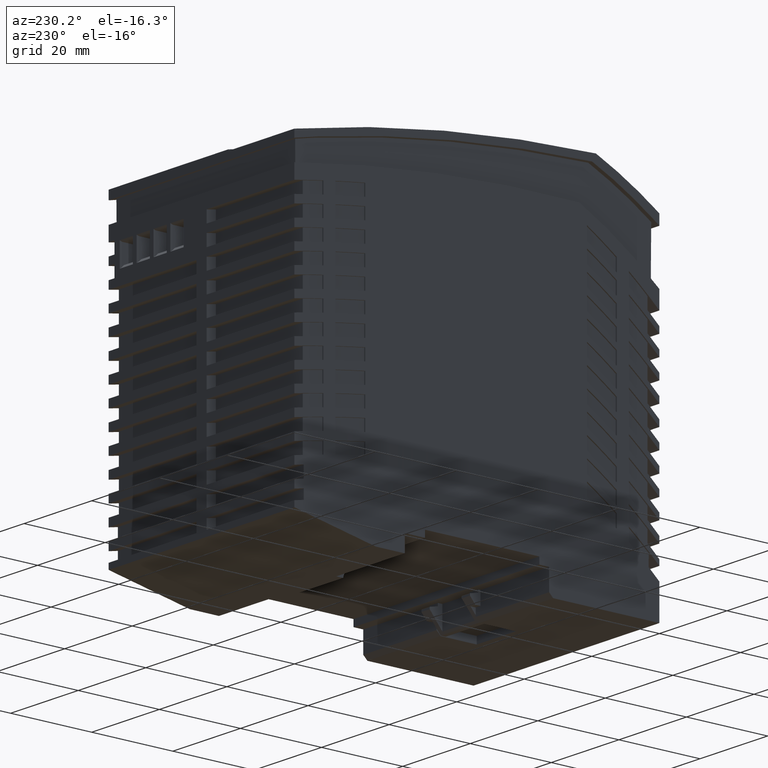
[diagram: clean part render]
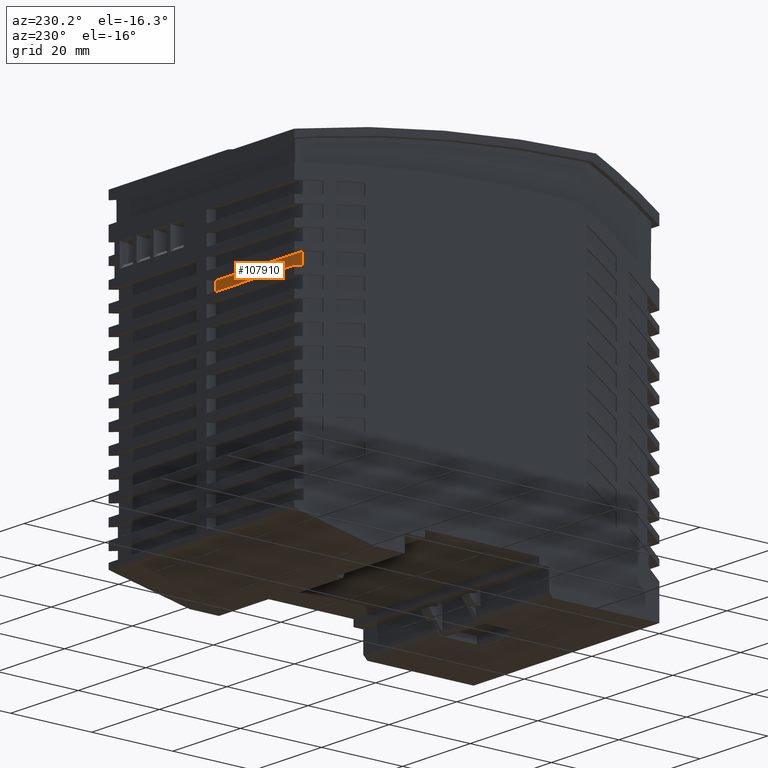
[diagram: same view with one face highlighted and labeled with its STEP entity id]
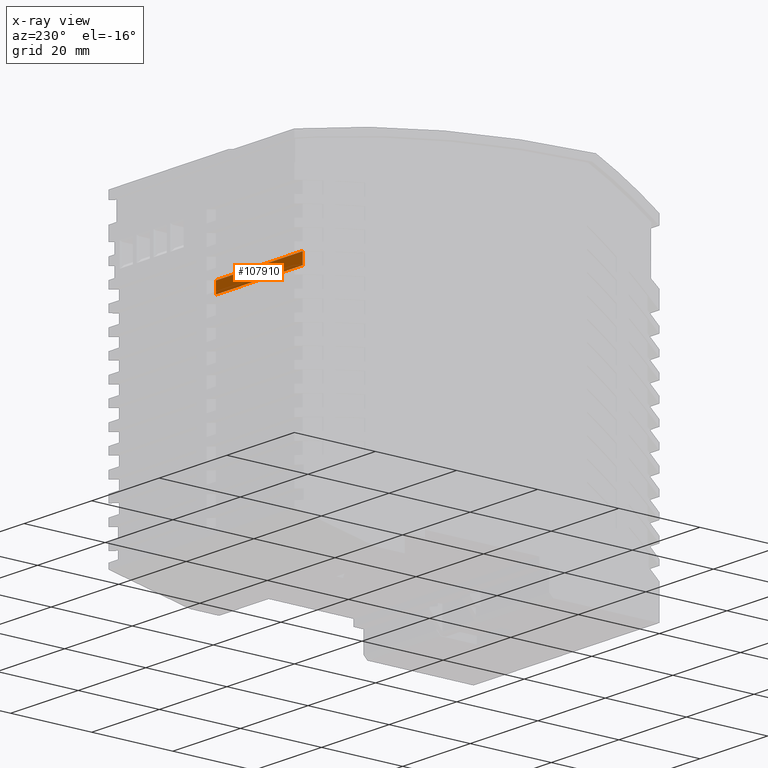
[diagram: x-ray of the same camera — body ghosted, the highlighted face saturated]
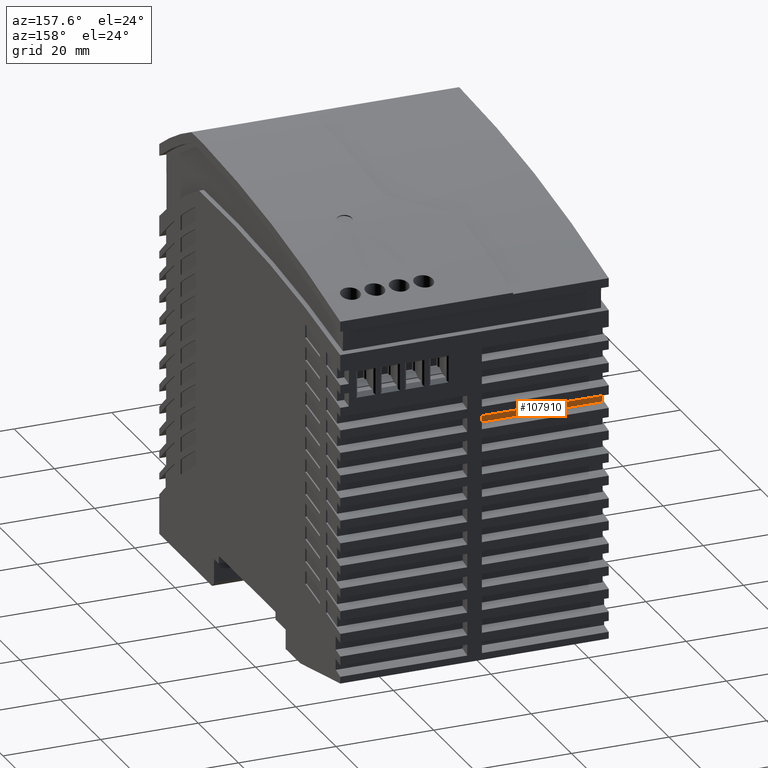
[diagram: same view with one face highlighted and labeled with its STEP entity id]
A machine part, auxiliary view. The second image highlights one B-rep face of the part: STEP entity #107910.
The next image is the same camera in x-ray: the body ghosted, the highlighted face saturated — about 0% of this face is hidden behind the body in this view.
A second angle (auxiliary view) of the same face is appended — the face is thin or edge-on in the first view.
In plain terms, the highlighted planar face has unit normal (0, -1, 0).
Its self-contained STEP definition (entity closure, byte-faithful):
#91210=CARTESIAN_POINT('',(42.6984763926282,57.0732471520077,-53.7));
#91220=VERTEX_POINT('',#91210);
#91250=CARTESIAN_POINT('',(42.6984763926292,57.0732471520075,-28.));
#91260=DIRECTION('',(0.,0.,-1.));
#91270=VECTOR('',#91260,1.);
#91280=LINE('',#91250,#91270);
#91290=CARTESIAN_POINT('',(42.6984763926282,57.0732471520077,-28.));
#91300=VERTEX_POINT('',#91290);
#91310=EDGE_CURVE('',#91300,#91220,#91280,.T.);
#92930=CARTESIAN_POINT('',(42.6984763926294,54.2772368104445,-28.));
#92940=VERTEX_POINT('',#92930);
#92970=CARTESIAN_POINT('',(42.6984763926292,54.2772368104446,-28.));
#92980=DIRECTION('',(0.,0.,-1.));
#92990=VECTOR('',#92980,1.);
#93000=LINE('',#92970,#92990);
#93010=CARTESIAN_POINT('',(42.6984763926294,54.2772368104445,-53.7));
#93020=VERTEX_POINT('',#93010);
#93030=EDGE_CURVE('',#92940,#93020,#93000,.T.);
#96140=CARTESIAN_POINT('',(42.6984763926292,0.,-53.7));
#96150=DIRECTION('',(0.,1.,0.));
#96160=VECTOR('',#96150,1.);
#96170=LINE('',#96140,#96160);
#96180=EDGE_CURVE('',#93020,#91220,#96170,.T.);
#103360=CARTESIAN_POINT('',(42.6984763926292,90.0290722762113,-28.));
#103370=DIRECTION('',(0.,-1.,0.));
#103380=VECTOR('',#103370,1.);
#103390=LINE('',#103360,#103380);
#103400=EDGE_CURVE('',#91300,#92940,#103390,.T.);
#107800=CARTESIAN_POINT('',(42.6984763926292,57.0732471520075,-28.));
#107810=DIRECTION('',(-1.,0.,0.));
#107820=DIRECTION('',(0.,-1.,0.));
#107830=AXIS2_PLACEMENT_3D('',#107800,#107810,#107820);
#107840=PLANE('',#107830);
#107850=ORIENTED_EDGE('',*,*,#93030,.T.);
#107860=ORIENTED_EDGE('',*,*,#103400,.T.);
#107870=ORIENTED_EDGE('',*,*,#91310,.F.);
#107880=ORIENTED_EDGE('',*,*,#96180,.T.);
#107890=EDGE_LOOP('',(#107880,#107870,#107860,#107850));
#107900=FACE_OUTER_BOUND('',#107890,.T.);
#107910=ADVANCED_FACE('',(#107900),#107840,.F.);